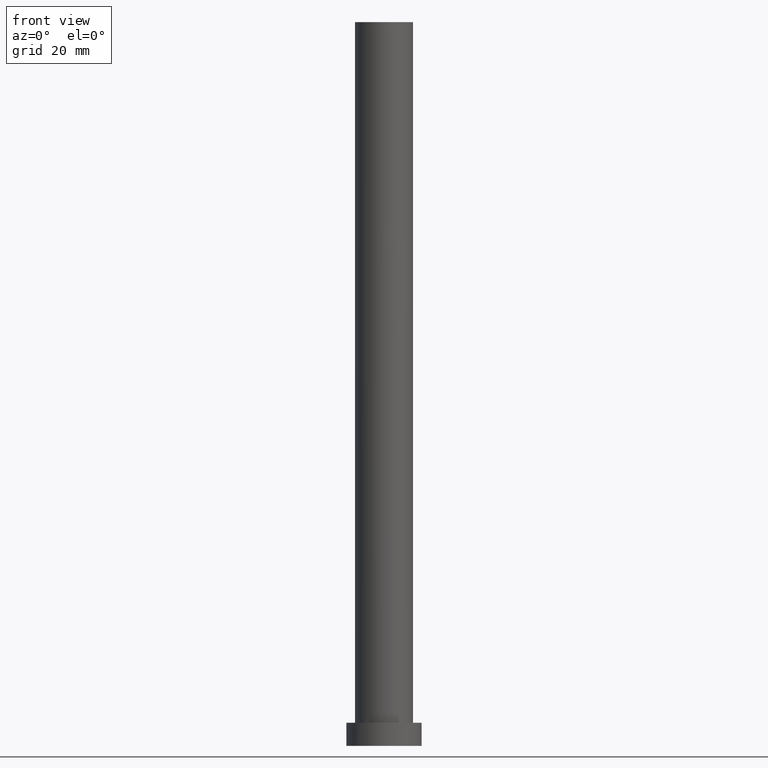
[diagram: clean part render]
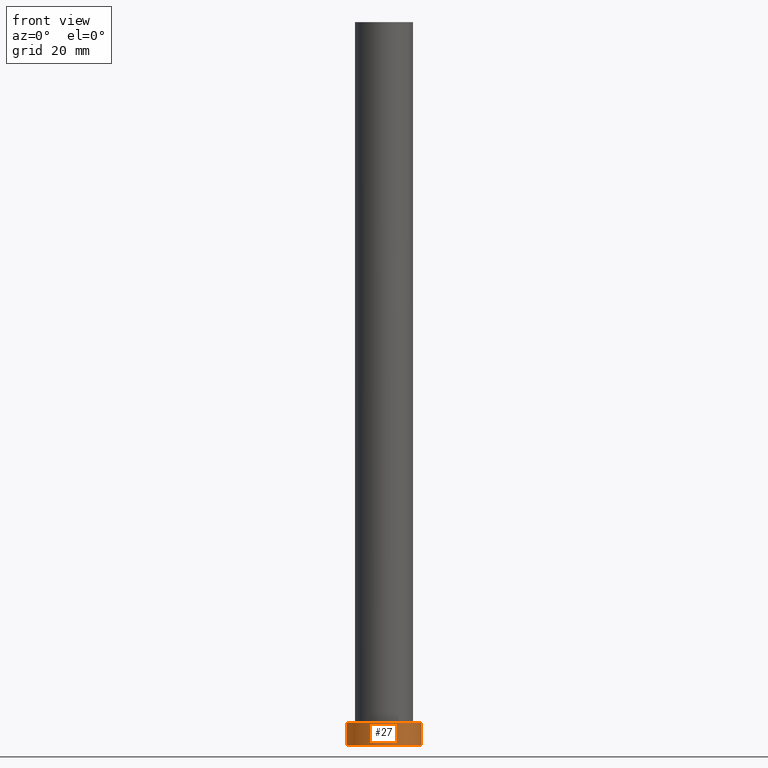
[diagram: same view with one face highlighted and labeled with its STEP entity id]
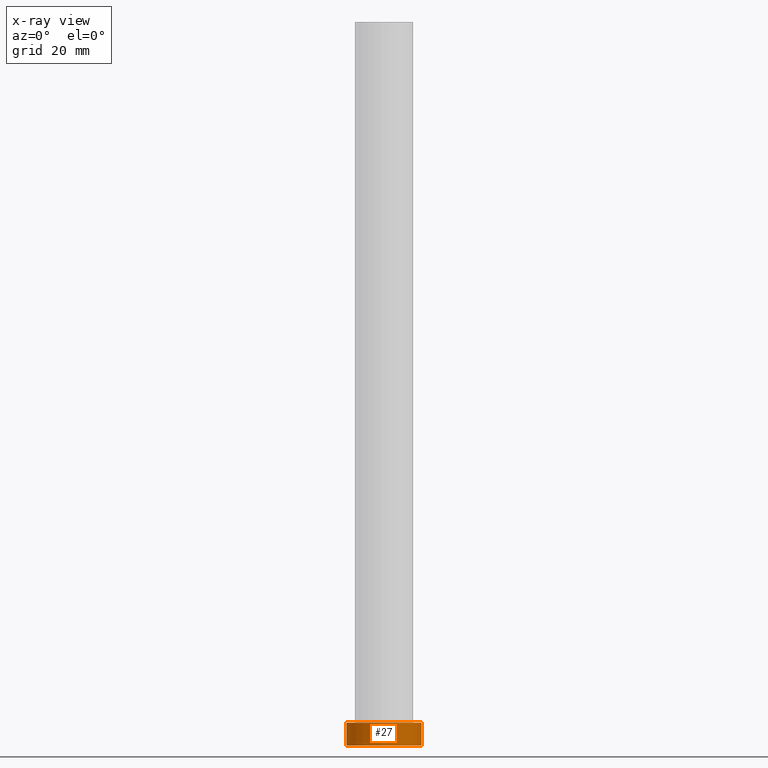
[diagram: x-ray of the same camera — body ghosted, the highlighted face saturated]
A machine part, front view. The second image highlights one B-rep face of the part: STEP entity #27.
The next image is the same camera in x-ray: the body ghosted, the highlighted face saturated — about 0% of this face is hidden behind the body in this view.
In plain terms, the highlighted cylindrical surface (partial cylindrical patch) has radius 13 mm, axis along (-0, -0, -1).
Its self-contained STEP definition (entity closure, byte-faithful):
#1 = CIRCLE ( 'NONE', #22, 13.00000000000000178 ) ;
#2 = CYLINDRICAL_SURFACE ( 'NONE', #247, 13.00000000000000178 ) ;
#18 = VERTEX_POINT ( 'NONE', #25 ) ;
#20 = CARTESIAN_POINT ( 'NONE',  ( 0.000000000000000000, 0.000000000000000000, 0.000000000000000000 ) ) ;
#22 = AXIS2_PLACEMENT_3D ( 'NONE', #23, #179, #180 ) ;
#23 = CARTESIAN_POINT ( 'NONE',  ( 0.000000000000000000, 0.000000000000000000, 8.000000000000000000 ) ) ;
#24 = EDGE_CURVE ( 'NONE', #133, #28, #1, .T. ) ;
#25 = CARTESIAN_POINT ( 'NONE',  ( -13.00000000000000178, 0.000000000000000000, 0.000000000000000000 ) ) ;
#27 = ADVANCED_FACE ( 'NONE', ( #111 ), #2, .T. ) ;
#28 = VERTEX_POINT ( 'NONE', #161 ) ;
#43 = VECTOR ( 'NONE', #128, 1000.000000000000000 ) ;
#51 = EDGE_CURVE ( 'NONE', #18, #99, #108, .T. ) ;
#55 = VECTOR ( 'NONE', #144, 1000.000000000000000 ) ;
#56 = EDGE_CURVE ( 'NONE', #133, #18, #208, .T. ) ;
#57 = DIRECTION ( 'NONE',  ( -1.000000000000000000, 0.000000000000000000, 0.000000000000000000 ) ) ;
#73 = CARTESIAN_POINT ( 'NONE',  ( 0.000000000000000000, 0.000000000000000000, 8.000000000000000000 ) ) ;
#83 = CARTESIAN_POINT ( 'NONE',  ( -13.00000000000000178, 0.000000000000000000, 8.000000000000000000 ) ) ;
#90 = ORIENTED_EDGE ( 'NONE', *, *, #51, .T. ) ;
#94 = CARTESIAN_POINT ( 'NONE',  ( 13.00000000000000178, 1.592040838891559293E-15, 0.000000000000000000 ) ) ;
#95 = DIRECTION ( 'NONE',  ( 0.000000000000000000, 0.000000000000000000, 1.000000000000000000 ) ) ;
#99 = VERTEX_POINT ( 'NONE', #94 ) ;
#108 = CIRCLE ( 'NONE', #156, 13.00000000000000178 ) ;
#111 = FACE_OUTER_BOUND ( 'NONE', #253, .T. ) ;
#128 = DIRECTION ( 'NONE',  ( -0.000000000000000000, -0.000000000000000000, -1.000000000000000000 ) ) ;
#133 = VERTEX_POINT ( 'NONE', #170 ) ;
#144 = DIRECTION ( 'NONE',  ( -0.000000000000000000, -0.000000000000000000, -1.000000000000000000 ) ) ;
#156 = AXIS2_PLACEMENT_3D ( 'NONE', #20, #95, #188 ) ;
#161 = CARTESIAN_POINT ( 'NONE',  ( 13.00000000000000178, 1.592040838891559293E-15, 8.000000000000000000 ) ) ;
#170 = CARTESIAN_POINT ( 'NONE',  ( -13.00000000000000178, 0.000000000000000000, 8.000000000000000000 ) ) ;
#179 = DIRECTION ( 'NONE',  ( 0.000000000000000000, 0.000000000000000000, 1.000000000000000000 ) ) ;
#180 = DIRECTION ( 'NONE',  ( 1.000000000000000000, 0.000000000000000000, 0.000000000000000000 ) ) ;
#188 = DIRECTION ( 'NONE',  ( 1.000000000000000000, 0.000000000000000000, 0.000000000000000000 ) ) ;
#202 = EDGE_CURVE ( 'NONE', #28, #99, #221, .T. ) ;
#205 = ORIENTED_EDGE ( 'NONE', *, *, #202, .F. ) ;
#208 = LINE ( 'NONE', #83, #43 ) ;
#221 = LINE ( 'NONE', #240, #55 ) ;
#240 = CARTESIAN_POINT ( 'NONE',  ( 13.00000000000000178, 1.592040838891559293E-15, 8.000000000000000000 ) ) ;
#243 = DIRECTION ( 'NONE',  ( -0.000000000000000000, -0.000000000000000000, -1.000000000000000000 ) ) ;
#247 = AXIS2_PLACEMENT_3D ( 'NONE', #73, #243, #57 ) ;
#249 = ORIENTED_EDGE ( 'NONE', *, *, #24, .F. ) ;
#253 = EDGE_LOOP ( 'NONE', ( #205, #249, #254, #90 ) ) ;
#254 = ORIENTED_EDGE ( 'NONE', *, *, #56, .T. ) ;